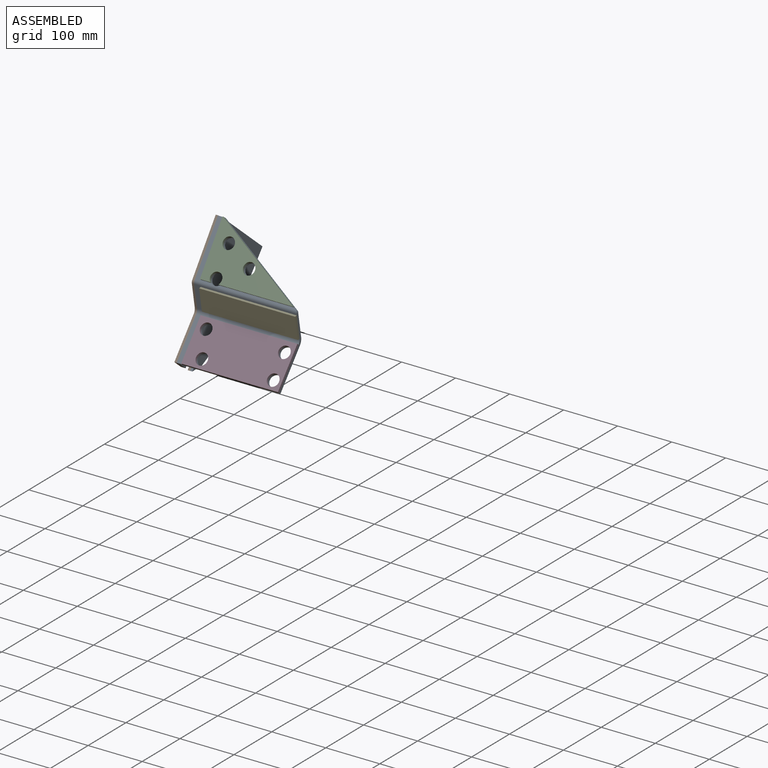
[diagram: assembled view]
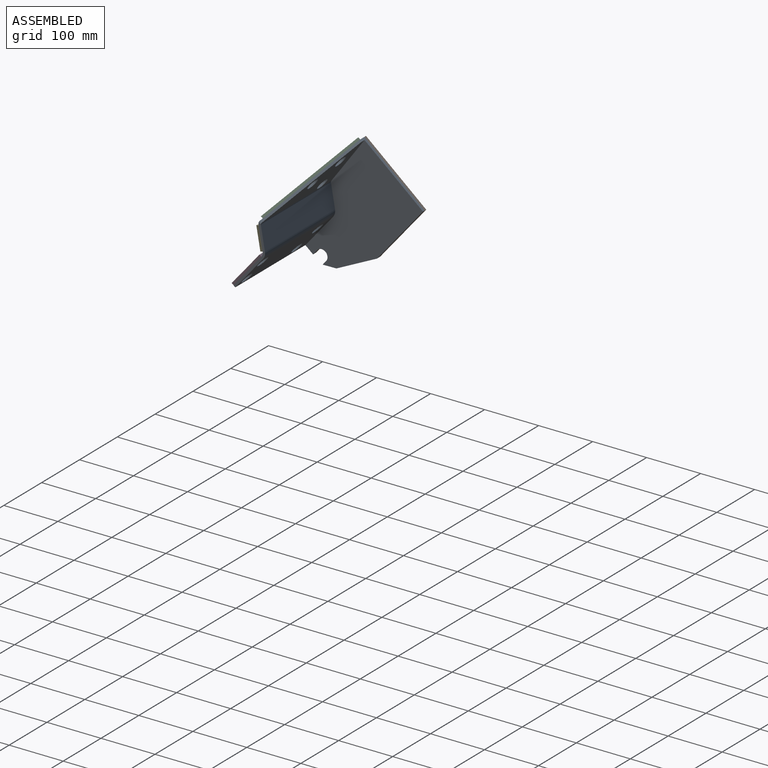
[diagram: assembled view, second angle]
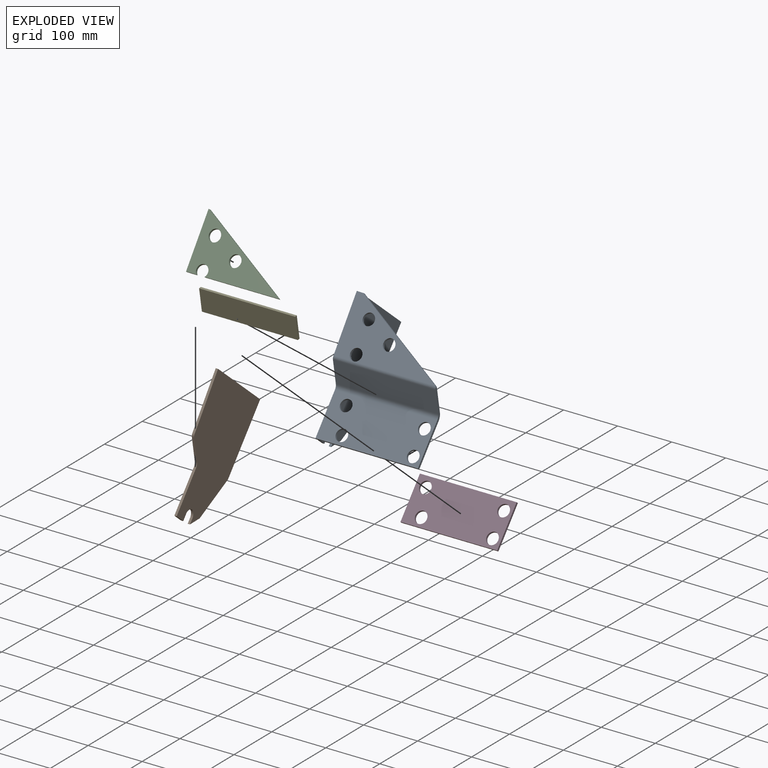
[diagram: exploded view]
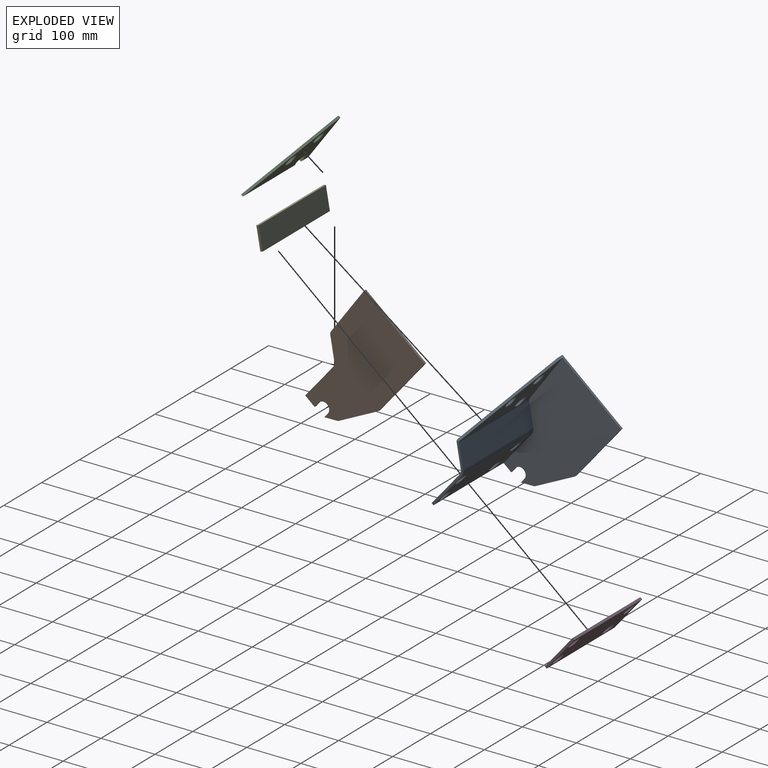
[diagram: exploded view, second angle]
ASSEMBLY  parts=5 mates=9
PART A: 33 faces, bbox 189.7x145.5x227.4 mm
  f0: plane 19.32x16.78mm, normal (0,0.66,-0.76), area 110.5mm2, adj f2,f4,f25,f31
  f1: cylinder r=10.79mm len=21.59mm, axis (-1,0,0), area 146.4mm2, adj f2,f25,f31,f32
  f2: plane 227.4x145.48mm, normal (-1,0,0), area 25075.2mm2, adj f0,f1,f3,f4,f5,f11,f19,f20
  f3: plane 132.63x4.32mm, normal (0,1,0), area 572.7mm2, adj f2,f4,f19,f25
  f4: plane 76.01x33.89mm, normal (0,0.91,-0.41), area 359.4mm2, adj f0,f2,f3,f25
  f5: plane 189.74x22.73mm, normal (0,0,-1), area 898.8mm2, adj f2,f6,f21,f25,f27,f32
  f6: plane 121.44x43.99mm, normal (1,0,0), area 596.3mm2, adj f5,f7,f20,f21,f23,f24,f26,f27
  f7: bspline ~4.7x3.35mm, area 10mm2, adj f6,f8,f23,f29
  f8: bspline ~4.33x0.8mm, area 2.3mm2, adj f7,f9,f23,f29
  f9: plane 176.2x104.73mm, normal (0.51,-0.06,0.86), area 885mm2, adj f8,f10,f22,f28
  f10: plane 12.31x4.31mm, normal (0,-0.07,1), area 43.8mm2, adj f9,f11,f22,f28
  f11: plane 4.33x4.32mm, normal (0.71,-0.71,-0.05), area 0.9mm2, adj f2,f10,f19
  f12: cylinder r=10.79mm len=21.84mm, axis (0,-1,-0.07), area 292.9mm2, adj f22,f28
  f13: cylinder r=10.79mm len=21.84mm, axis (0,-1,-0.07), area 292.9mm2, adj f22,f28
  f14: cylinder r=10.79mm len=21.84mm, axis (0,-1,-0.07), area 292.9mm2, adj f22,f28
  f15: cylinder r=10.79mm len=21.59mm, axis (0,-1,0), area 292.9mm2, adj f21,f27
  f16: cylinder r=10.79mm len=21.59mm, axis (0,-1,0), area 292.9mm2, adj f21,f27
  f17: cylinder r=10.79mm len=21.59mm, axis (0,-1,0), area 292.9mm2, adj f21,f27
  f18: cylinder r=10.79mm len=21.59mm, axis (0,-1,0), area 292.9mm2, adj f21,f27
  f19: plane 145.48x4.32mm, normal (0,0,1), area 618.8mm2, adj f2,f3,f11,f25
  f20: cylinder r=11.3mm len=189.74mm, axis (1,0,0), area 1871.5mm2, adj f2,f6,f21,f24
  f21: plane 189.74x80.08mm, normal (0,-1,0), area 13729.8mm2, adj f2,f5,f6,f15,f16,f17,f18,f20
  f22: plane 188.51x104.42mm, normal (0,-1,-0.07), area 9412.4mm2, adj f2,f9,f10,f12,f13,f14,f23
  f23: cylinder r=8.13mm len=189.74mm, axis (1,0,0), area 1236.4mm2, adj f2,f6,f7,f8,f22,f24
  f24: plane 189.74x33.7mm, normal (0,-0.64,-0.77), area 8347mm2, adj f2,f6,f20,f23
  f25: plane 227.4x141.15mm, normal (1,0,0), area 24015.4mm2, adj f0,f1,f3,f4,f5,f19,f26,f27
  f26: cylinder r=15.62mm len=185.42mm, axis (1,0,0), area 2527.6mm2, adj f6,f25,f27,f30
  f27: plane 185.42x80.08mm, normal (0,1,0), area 13384mm2, adj f5,f6,f15,f16,f17,f18,f25,f26
  f28: plane 184.19x104.42mm, normal (0,1,0.07), area 8960.4mm2, adj f9,f10,f12,f13,f14,f25,f29
  f29: cylinder r=3.81mm len=185.42mm, axis (1,0,0), area 566.4mm2, adj f6,f7,f8,f25,f28,f30
  f30: plane 185.42x33.7mm, normal (0,0.64,0.77), area 8157.1mm2, adj f6,f25,f26,f29
  f31: plane 10.08x4.32mm, normal (0,-1,0), area 43.5mm2, adj f0,f1,f2,f25
  f32: plane 12.07x4.32mm, normal (0,1,0), area 52.1mm2, adj f1,f2,f5,f25
PART B: 16 faces, bbox 145.5x4.3x227.4 mm
  f0: plane 12.07x4.32mm, normal (-1,0,0), area 52.1mm2, adj f1,f13,f14,f15
  f1: plane 22.73x4.32mm, normal (0,0,-1), area 98.2mm2, adj f0,f2,f14,f15
  f2: plane 80.08x4.32mm, normal (1,0,0), area 345.8mm2, adj f1,f3,f14,f15
  f3: cylinder r=11.3mm len=8.66mm, axis (0,1,0), area 42.6mm2, adj f2,f4,f14,f15
  f4: plane 33.7x28.28mm, normal (0.64,0,-0.77), area 190mm2, adj f3,f5,f14,f15
  f5: cylinder r=8.13mm len=5.66mm, axis (0,1,0), area 28.2mm2, adj f4,f6,f14,f15
  f6: plane 104.42x7.3mm, normal (1,0,-0.07), area 452mm2, adj f5,f7,f14,f15
  f7: plane 4.32x0.3mm, normal (1,0,-0.07), area 1.3mm2, adj f6,f8,f14,f15
  f8: plane 145.48x4.32mm, normal (0,0,1), area 628.2mm2, adj f7,f9,f14,f15
  f9: plane 132.63x4.32mm, normal (-1,0,0), area 572.7mm2, adj f8,f10,f14,f15
  f10: plane 76.01x33.89mm, normal (-0.91,0,-0.41), area 359.4mm2, adj f9,f11,f14,f15
  f11: plane 19.32x16.78mm, normal (-0.66,0,-0.76), area 110.5mm2, adj f10,f12,f14,f15
  f12: plane 10.08x4.32mm, normal (1,0,0), area 43.5mm2, adj f11,f13,f14,f15
  f13: cylinder r=10.79mm len=21.59mm, axis (0,1,0), area 146.4mm2, adj f0,f12,f14,f15
  f14: plane 227.4x145.48mm, normal (0,-1,0), area 25075.2mm2, adj f0,f1,f2,f3,f4,f5,f6,f7
  f15: plane 227.4x145.48mm, normal (0,1,0), area 25075.2mm2, adj f0,f1,f2,f3,f4,f5,f6,f7
PART C: 10 faces, bbox 172.5x4.3x101.5 mm
  f0: plane 170.85x101.5mm, normal (0.51,0,0.86), area 858.1mm2, adj f2,f3,f4,f9
  f1: plane 101.5x4.32mm, normal (-1,0,0), area 438.3mm2, adj f2,f3,f4,f8
  f2: plane 172.49x101.5mm, normal (0,-1,0), area 7768.7mm2, adj f0,f1,f4,f5,f6,f7,f8,f9
  f3: plane 172.49x101.5mm, normal (0,1,0), area 7768.7mm2, adj f0,f1,f4,f5,f6,f7,f8,f9
  f4: plane 4.32x1.64mm, normal (0,0,1), area 7.1mm2, adj f0,f1,f2,f3
  f5: cylinder r=10.79mm len=21.59mm, axis (0,1,0), area 292.9mm2, adj f2,f3
  f6: cylinder r=10.79mm len=21.59mm, axis (0,1,0), area 223.1mm2, adj f2,f3,f8,f9
  f7: cylinder r=10.79mm len=21.59mm, axis (0,1,0), area 292.9mm2, adj f2,f3
  f8: plane 19.32x4.32mm, normal (0,0,-1), area 83.4mm2, adj f1,f2,f3,f6
  f9: plane 138.48x4.32mm, normal (0,0,-1), area 597.9mm2, adj f0,f2,f3,f6
PART D: 10 faces, bbox 179.1x4.3x80.1 mm
  f0: plane 179.07x4.32mm, normal (0,0,1), area 773.2mm2, adj f1,f6,f8,f9
  f1: plane 80.08x4.32mm, normal (-1,0,0), area 345.8mm2, adj f0,f2,f8,f9
  f2: plane 179.07x4.32mm, normal (0,0,-1), area 773.2mm2, adj f1,f6,f8,f9
  f3: cylinder r=10.79mm len=21.59mm, axis (0,1,0), area 292.9mm2, adj f8,f9
  f4: cylinder r=10.79mm len=21.59mm, axis (0,1,0), area 292.9mm2, adj f8,f9
  f5: cylinder r=10.79mm len=21.59mm, axis (0,1,0), area 292.9mm2, adj f8,f9
  f6: plane 80.08x4.32mm, normal (1,0,0), area 345.8mm2, adj f0,f2,f8,f9
  f7: cylinder r=10.79mm len=21.59mm, axis (0,1,0), area 292.9mm2, adj f8,f9
  f8: plane 179.07x80.08mm, normal (0,-1,0), area 12875.5mm2, adj f0,f1,f2,f3,f4,f5,f6,f7
  f9: plane 179.07x80.08mm, normal (0,1,0), area 12875.5mm2, adj f0,f1,f2,f3,f4,f5,f6,f7
PART E: 6 faces, bbox 177.8x4.3x42.4 mm
  f0: plane 177.84x4.32mm, normal (0,0,-1), area 767.9mm2, adj f1,f2,f3,f4
  f1: plane 177.84x42.41mm, normal (0,-1,0), area 7541.3mm2, adj f0,f3,f4,f5
  f2: plane 177.84x42.41mm, normal (0,1,0), area 7541.3mm2, adj f0,f3,f4,f5
  f3: plane 42.41x4.32mm, normal (-1,0,0), area 183.1mm2, adj f0,f1,f2,f5
  f4: plane 42.41x4.32mm, normal (1,0,0), area 183.1mm2, adj f0,f1,f2,f5
  f5: plane 177.84x4.32mm, normal (0,0,1), area 767.9mm2, adj f1,f2,f3,f4
PLACE A rot(axis=(-1,0,0),40deg) t=(-170.84,-268.79,106.88)mm
PLACE B rot(axis=(-0.32,-0.32,-0.89),96.7deg) t=(-272.31,-270.42,141.28)mm
PLACE C rot(axis=(-1,0,0),36deg) t=(-172.73,-298.32,212.82)mm
PLACE D rot(axis=(-1,0,0),40deg) t=(-172.11,-336.76,100.79)mm
PLACE E rot(axis=(1,0,0),10deg) t=(-171.5,-321.87,216.24)mm
MATE planar A.f3 <-> B.f9  axis (0,0.77,-0.64) through (-270.16,-184.23,130.82)mm
MATE cylindrical C.f7 <-> A.f12  axis (0,0.81,-0.59) through (-234.98,-276.4,246.67)mm
MATE planar A.f6 <-> E.f4  axis (1,0,0) through (-82.58,-324.45,124.04)mm
MATE cylindrical D.f7 <-> A.f15  axis (0,0.77,-0.64) through (-243.26,-324.47,118.79)mm
MATE planar B.f15 <-> A.f2  axis (1,0,0) through (-272.31,-252.53,152.89)mm
MATE planar B.f8 <-> A.f19  axis (0,0.64,0.77) through (-274.47,-197.33,228.38)mm
MATE planar D.f9 <-> A.f21  axis (0,0.77,-0.64) through (-82.58,-336.76,100.79)mm
MATE planar C.f3 <-> A.f22  axis (0,0.81,-0.59) through (-202.23,-293.09,220.03)mm
MATE planar E.f2 <-> A.f24  axis (0,0.98,0.17) through (-171.5,-312.23,161.57)mm
